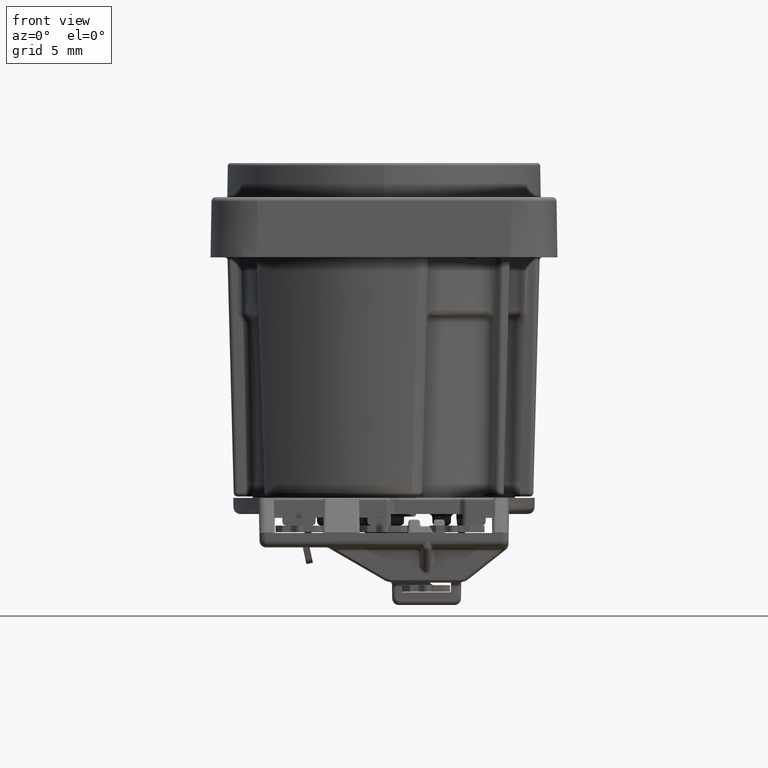
[diagram: clean part render]
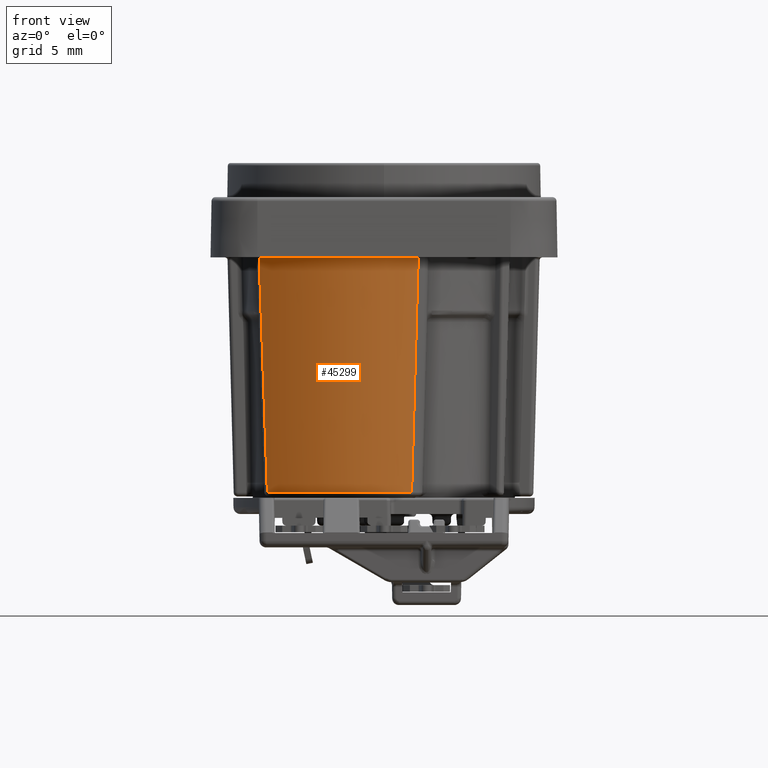
[diagram: same view with one face highlighted and labeled with its STEP entity id]
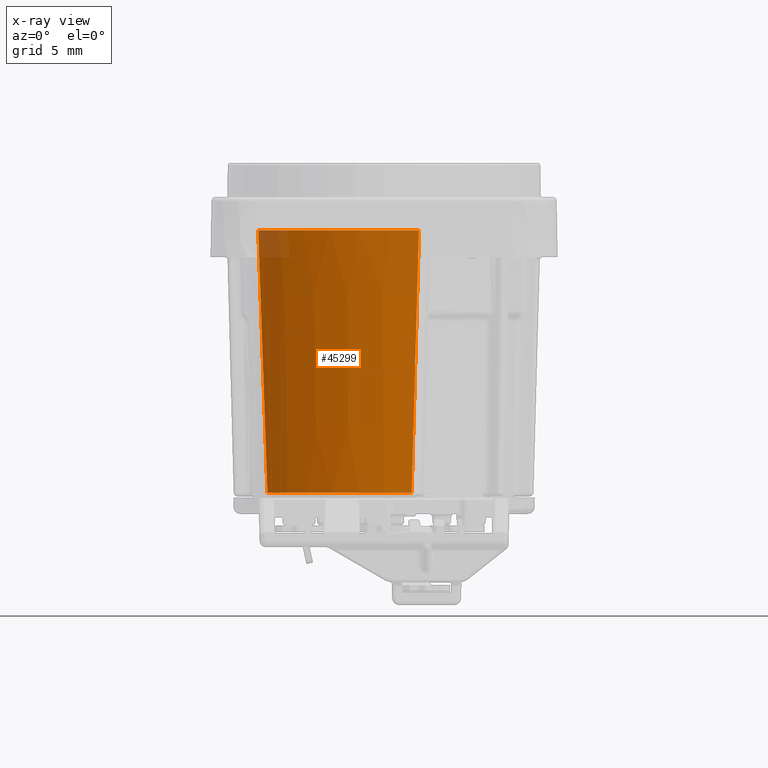
[diagram: x-ray of the same camera — body ghosted, the highlighted face saturated]
A machine part, front view. The second image highlights one B-rep face of the part: STEP entity #45299.
The next image is the same camera in x-ray: the body ghosted, the highlighted face saturated — about 2% of this face is hidden behind the body in this view.
In plain terms, the highlighted conical surface has half-angle 1.5 deg.
Its self-contained STEP definition (entity closure, byte-faithful):
#12911=CARTESIAN_POINT('',(0.E0,0.E0,-1.755785308449E1));
#12912=DIRECTION('',(0.E0,0.E0,1.E0));
#12913=DIRECTION('',(-7.755177829635E-1,-6.313257228305E-1,0.E0));
#12914=AXIS2_PLACEMENT_3D('',#12911,#12912,#12913);
#12916=CARTESIAN_POINT('',(-9.388728148639E0,-7.043778533663E0,
2.013088473195E0));
#12917=CARTESIAN_POINT('',(-9.337678986162E0,-7.047407633348E0,
5.368459772141E-1));
#12918=CARTESIAN_POINT('',(-9.233213884852E0,-7.054639298519E0,
-2.477459895013E0));
#12919=CARTESIAN_POINT('',(-9.071583308578E0,-7.065187544161E0,
-7.119445886774E0));
#12920=CARTESIAN_POINT('',(-8.898109956481E0,-7.075780573429E0,
-1.207673774581E1));
#12921=CARTESIAN_POINT('',(-8.771117679936E0,-7.082938359392E0,
-1.568538559870E1));
#12922=CARTESIAN_POINT('',(-8.705006138416E0,-7.086483912165E0,
-1.755785308295E1));
#12924=CARTESIAN_POINT('',(0.E0,0.E0,2.013088474154E0));
#12925=DIRECTION('',(0.E0,0.E0,-1.E0));
#12926=DIRECTION('',(2.223582669504E-1,-9.749650255875E-1,0.E0));
#12927=AXIS2_PLACEMENT_3D('',#12924,#12925,#12926);
#12929=CARTESIAN_POINT('',(2.609874518310E0,-1.144340802534E1,
2.013088474599E0));
#12930=CARTESIAN_POINT('',(2.568905695982E0,-1.141356771062E1,
5.541740676456E-1));
#12931=CARTESIAN_POINT('',(2.484777107811E0,-1.135205578796E1,
-2.439562503408E0));
#12932=CARTESIAN_POINT('',(2.353051248525E0,-1.125493496818E1,
-7.119789633438E0));
#12933=CARTESIAN_POINT('',(2.212536683949E0,-1.115040785020E1,
-1.210390752214E1));
#12934=CARTESIAN_POINT('',(2.111007498115E0,-1.107413492417E1,
-1.569842222534E1));
#12935=CARTESIAN_POINT('',(2.058429275547E0,-1.103441231395E1,
-1.755785308586E1));
#19012=CARTESIAN_POINT('',(2.609874518310E0,-1.144340802534E1,
2.013088474599E0));
#19047=CARTESIAN_POINT('',(-8.705006138416E0,-7.086483912165E0,
-1.755785308295E1));
#22977=VERTEX_POINT('',#19012);
#22980=CARTESIAN_POINT('',(-9.388728147035E0,-7.043778532451E0,
2.013088474154E0));
#22981=VERTEX_POINT('',#22980);
#23179=VERTEX_POINT('',#19047);
#23181=CARTESIAN_POINT('',(2.058429273535E0,-1.103441230311E1,
-1.755785308449E1));
#23182=VERTEX_POINT('',#23181);
#45284=CARTESIAN_POINT('',(0.E0,0.E0,-7.626308847710E0));
#45285=DIRECTION('',(0.E0,0.E0,1.E0));
#45286=DIRECTION('',(0.E0,1.E0,0.E0));
#45287=AXIS2_PLACEMENT_3D('',#45284,#45285,#45286);
#45288=CONICAL_SURFACE('',#45287,1.148483327073E1,1.5E0);
#45290=ORIENTED_EDGE('',*,*,#45289,.F.);
#45292=ORIENTED_EDGE('',*,*,#45291,.F.);
#45294=ORIENTED_EDGE('',*,*,#45293,.F.);
#45296=ORIENTED_EDGE('',*,*,#45295,.T.);
#45297=EDGE_LOOP('',(#45290,#45292,#45294,#45296));
#45298=FACE_OUTER_BOUND('',#45297,.F.);
#45299=ADVANCED_FACE('',(#45298),#45288,.T.);
#12915=CIRCLE('',#12914,1.122476663228E1);
#12923=B_SPLINE_CURVE_WITH_KNOTS('',3,(#12916,#12917,#12918,#12919,#12920,
#12921,#12922),.UNSPECIFIED.,.F.,.F.,(4,1,1,1,4),(0.E0,2.5E-1,5.E-1,7.5E-1,
1.E0),.UNSPECIFIED.);
#12928=CIRCLE('',#12927,1.173724977297E1);
#12936=B_SPLINE_CURVE_WITH_KNOTS('',3,(#12929,#12930,#12931,#12932,#12933,
#12934,#12935),.UNSPECIFIED.,.F.,.F.,(4,1,1,1,4),(0.E0,2.5E-1,5.E-1,7.5E-1,
1.E0),.UNSPECIFIED.);
#45289=EDGE_CURVE('',#23179,#23182,#12915,.T.);
#45291=EDGE_CURVE('',#22981,#23179,#12923,.T.);
#45293=EDGE_CURVE('',#22977,#22981,#12928,.T.);
#45295=EDGE_CURVE('',#22977,#23182,#12936,.T.);